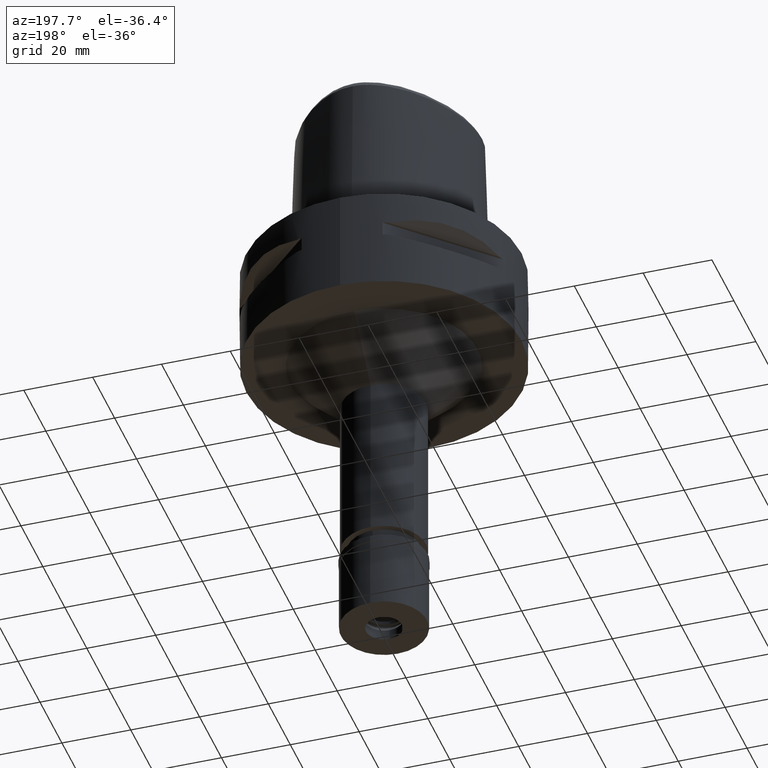
[diagram: clean part render]
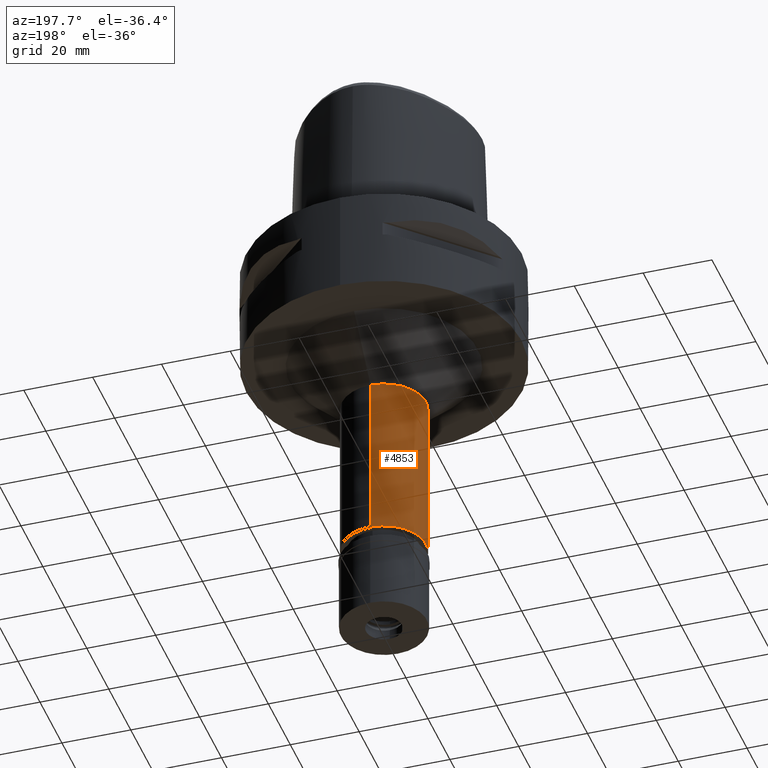
[diagram: same view with one face highlighted and labeled with its STEP entity id]
A machine part, auxiliary view. The second image highlights one B-rep face of the part: STEP entity #4853.
In plain terms, the highlighted cylindrical surface (partial cylindrical patch) has radius 12.25 mm, axis along (0, 0, -1).
Its self-contained STEP definition (entity closure, byte-faithful):
#133 = CYLINDRICAL_SURFACE ( 'NONE', #3170, 12.25000000000000000 ) ;
#313 = DIRECTION ( 'NONE',  ( 0.0000000000000000000, 0.0000000000000000000, -1.000000000000000000 ) ) ;
#526 = CARTESIAN_POINT ( 'NONE',  ( 0.0000000000000000000, 1.292614696500000017E-14, 5.549999999999999822 ) ) ;
#617 = EDGE_CURVE ( 'NONE', #3024, #4777, #1170, .T. ) ;
#791 = ORIENTED_EDGE ( 'NONE', *, *, #2935, .T. ) ;
#839 = DIRECTION ( 'NONE',  ( 0.0000000000000000000, 0.0000000000000000000, -1.000000000000000000 ) ) ;
#1054 = DIRECTION ( 'NONE',  ( 0.0000000000000000000, 0.0000000000000000000, 1.000000000000000000 ) ) ;
#1061 = EDGE_CURVE ( 'NONE', #4777, #3724, #2639, .T. ) ;
#1170 = LINE ( 'NONE', #3921, #5116 ) ;
#1446 = CARTESIAN_POINT ( 'NONE',  ( 0.0000000000000000000, 12.25000000000000000, -45.00000000000000000 ) ) ;
#1476 = DIRECTION ( 'NONE',  ( 0.0000000000000000000, 1.000000000000000000, 0.0000000000000000000 ) ) ;
#1549 = LINE ( 'NONE', #1922, #2739 ) ;
#1714 = DIRECTION ( 'NONE',  ( 0.0000000000000000000, 0.0000000000000000000, -1.000000000000000000 ) ) ;
#1733 = CARTESIAN_POINT ( 'NONE',  ( 0.0000000000000000000, 12.25000000000000000, -93.79999999999999716 ) ) ;
#1798 = ORIENTED_EDGE ( 'NONE', *, *, #1061, .T. ) ;
#1922 = CARTESIAN_POINT ( 'NONE',  ( 0.0000000000000000000, -12.25000000000000000, -45.00000000000000000 ) ) ;
#1926 = CARTESIAN_POINT ( 'NONE',  ( 0.0000000000000000000, 1.292614696500000017E-14, -93.79999999999999716 ) ) ;
#2022 = ORIENTED_EDGE ( 'NONE', *, *, #3070, .F. ) ;
#2234 = CARTESIAN_POINT ( 'NONE',  ( 0.0000000000000000000, 0.0000000000000000000, -45.00000000000000000 ) ) ;
#2639 = CIRCLE ( 'NONE', #3626, 12.25000000000000000 ) ;
#2739 = VECTOR ( 'NONE', #839, 1000.000000000000000 ) ;
#2745 = EDGE_LOOP ( 'NONE', ( #1798, #2022, #791, #3389 ) ) ;
#2824 = CARTESIAN_POINT ( 'NONE',  ( 0.0000000000000000000, -12.25000000000000000, -93.79999999999999716 ) ) ;
#2935 = EDGE_CURVE ( 'NONE', #4478, #3024, #3640, .T. ) ;
#3024 = VERTEX_POINT ( 'NONE', #1446 ) ;
#3070 = EDGE_CURVE ( 'NONE', #4478, #3724, #1549, .T. ) ;
#3170 = AXIS2_PLACEMENT_3D ( 'NONE', #526, #1714, #3282 ) ;
#3282 = DIRECTION ( 'NONE',  ( 0.0000000000000000000, -1.000000000000000000, 0.0000000000000000000 ) ) ;
#3330 = FACE_OUTER_BOUND ( 'NONE', #2745, .T. ) ;
#3389 = ORIENTED_EDGE ( 'NONE', *, *, #617, .T. ) ;
#3626 = AXIS2_PLACEMENT_3D ( 'NONE', #1926, #1054, #1476 ) ;
#3640 = CIRCLE ( 'NONE', #4051, 12.25000000000000000 ) ;
#3724 = VERTEX_POINT ( 'NONE', #2824 ) ;
#3921 = CARTESIAN_POINT ( 'NONE',  ( 0.0000000000000000000, 12.25000000000000000, -45.00000000000000000 ) ) ;
#4051 = AXIS2_PLACEMENT_3D ( 'NONE', #2234, #4910, #4932 ) ;
#4478 = VERTEX_POINT ( 'NONE', #4605 ) ;
#4605 = CARTESIAN_POINT ( 'NONE',  ( 0.0000000000000000000, -12.25000000000000000, -45.00000000000000000 ) ) ;
#4777 = VERTEX_POINT ( 'NONE', #1733 ) ;
#4853 = ADVANCED_FACE ( 'NONE', ( #3330 ), #133, .T. ) ;
#4910 = DIRECTION ( 'NONE',  ( 0.0000000000000000000, 0.0000000000000000000, -1.000000000000000000 ) ) ;
#4932 = DIRECTION ( 'NONE',  ( 0.0000000000000000000, -1.000000000000000000, 0.0000000000000000000 ) ) ;
#5116 = VECTOR ( 'NONE', #313, 1000.000000000000000 ) ;